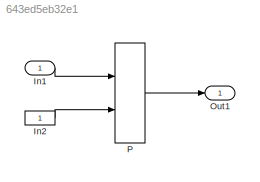
MODEL slx_643ed5eb32e1
KIND model
CONFIG AbsTol = auto
CONFIG EnableMultiTasking = off
CONFIG FixedStep = auto
CONFIG MaxStep = auto
CONFIG MinStep = auto
CONFIG RelTol = 1e-3
CONFIG SampleTimeConstraint = Unconstrained
CONFIG Solver = FixedStepDiscrete
CONFIG SolverName = FixedStepDiscrete
CONFIG StartTime = 0.0
CONFIG StopTime = 10.0
BLOCK [Inport] In1
  IconDisplay = Port number
  OutDataTypeStr = uint8
  PortDimensions = [2 2]
BLOCK [Constant] In2
BLOCK [Outport] Out1
  IconDisplay = Port number
BLOCK [Selector] P
  IndexOptions = Starting index (dialog),Starting index (port)
  Indices = 1,[]
  InputPortWidth = 3
  NumberOfDimensions = 2
  OutputSizes = 2,2
  Ports = [2, 1]
LINE In1:1 -> P:1
LINE In2:1 -> P:2
LINE P:1 -> Out1:1
